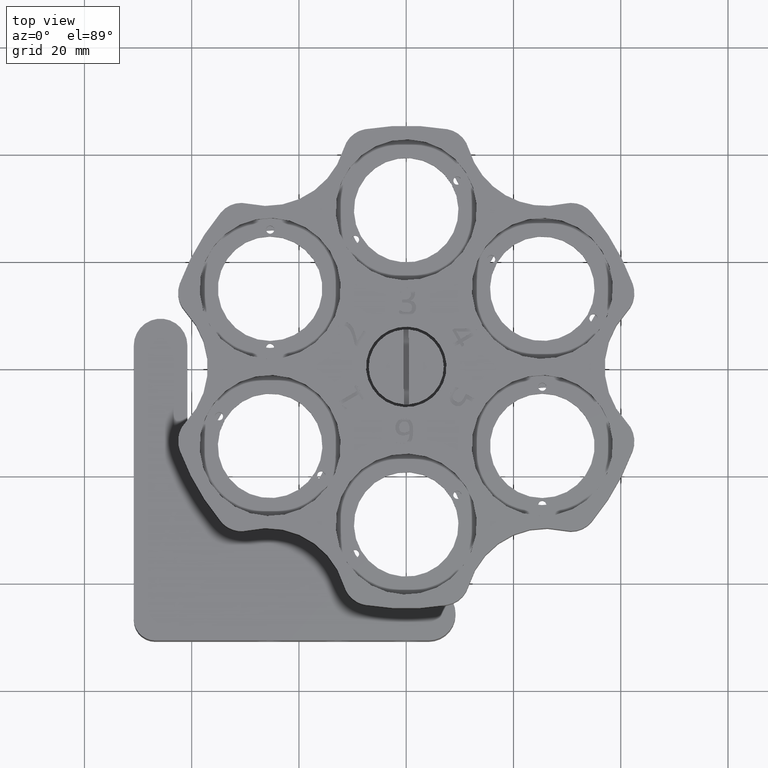
[diagram: clean part render]
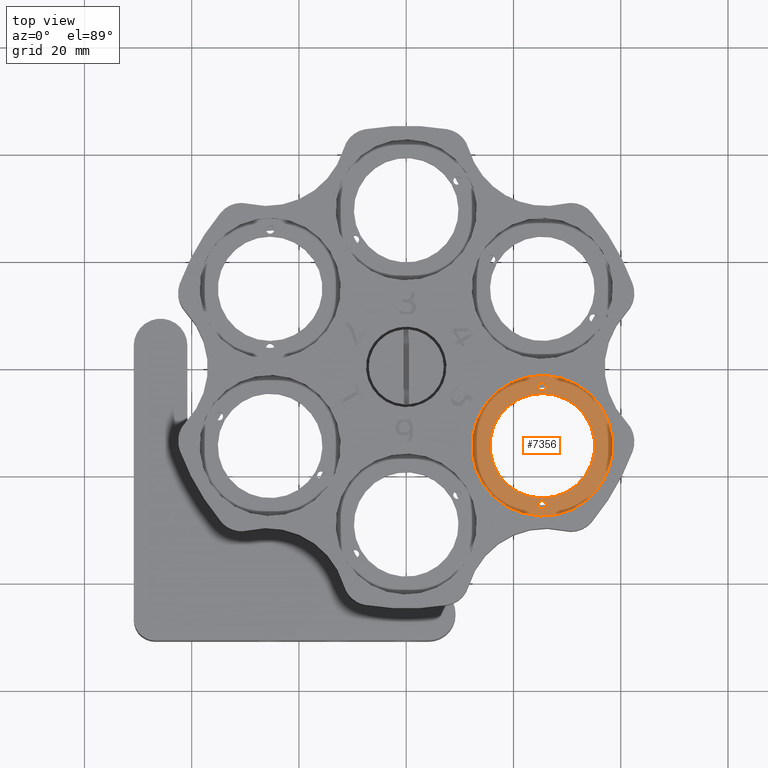
[diagram: same view with one face highlighted and labeled with its STEP entity id]
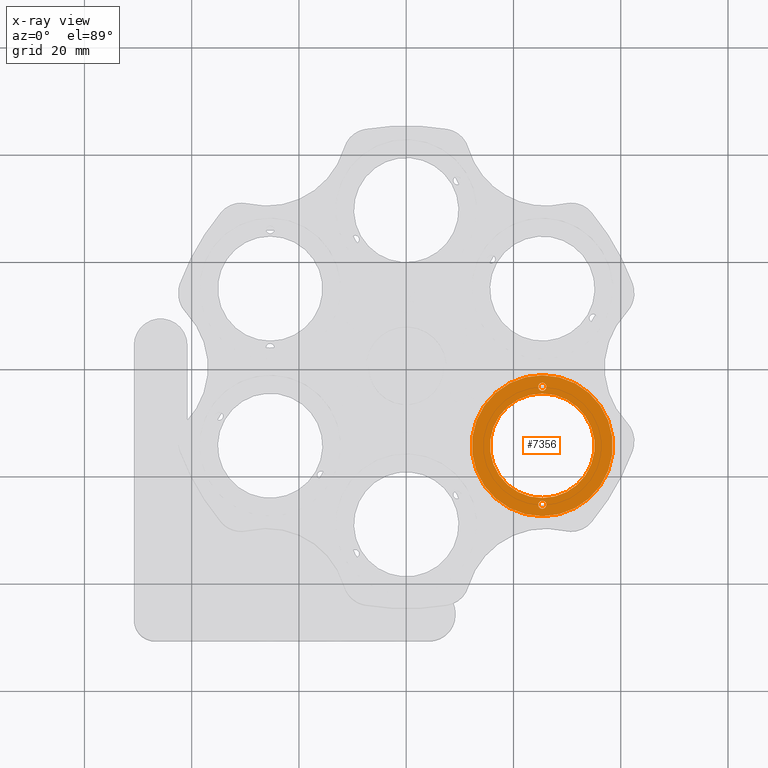
[diagram: x-ray of the same camera — body ghosted, the highlighted face saturated]
A machine part, top view. The second image highlights one B-rep face of the part: STEP entity #7356.
The next image is the same camera in x-ray: the body ghosted, the highlighted face saturated — about 0% of this face is hidden behind the body in this view.
In plain terms, the highlighted planar face has unit normal (0, -0, 1).
Its self-contained STEP definition (entity closure, byte-faithful):
#51 = DIRECTION ( 'NONE',  ( 7.511970391571011800E-032, 3.328006943901143600E-031, 1.000000000000000000 ) ) ;
#84 = EDGE_CURVE ( 'NONE', #3456, #5220, #5062, .T. ) ;
#321 = DIRECTION ( 'NONE',  ( 0.0000000000000000000, 1.000000000000000000, 0.0000000000000000000 ) ) ;
#370 = ORIENTED_EDGE ( 'NONE', *, *, #2114, .F. ) ;
#534 = CARTESIAN_POINT ( 'NONE',  ( 25.37454433088454700, -25.64999999999951200, 8.599999999999980100 ) ) ;
#688 = AXIS2_PLACEMENT_3D ( 'NONE', #7331, #51, #14393 ) ;
#792 = CIRCLE ( 'NONE', #13187, 0.7500000000000075500 ) ;
#910 = AXIS2_PLACEMENT_3D ( 'NONE', #4142, #10038, #11241 ) ;
#1063 = ORIENTED_EDGE ( 'NONE', *, *, #5797, .F. ) ;
#1271 = EDGE_LOOP ( 'NONE', ( #370, #15469 ) ) ;
#1356 = CIRCLE ( 'NONE', #1898, 0.7500000000000075500 ) ;
#1557 = CIRCLE ( 'NONE', #8731, 9.750000000000106600 ) ;
#1581 = DIRECTION ( 'NONE',  ( 7.511970391571011800E-032, 3.328006943901143600E-031, 1.000000000000000000 ) ) ;
#1662 = DIRECTION ( 'NONE',  ( 7.511970391571011800E-032, 3.328006943901143600E-031, 1.000000000000000000 ) ) ;
#1898 = AXIS2_PLACEMENT_3D ( 'NONE', #534, #14976, #11390 ) ;
#2114 = EDGE_CURVE ( 'NONE', #4459, #4393, #3797, .T. ) ;
#2335 = VERTEX_POINT ( 'NONE', #10854 ) ;
#2833 = DIRECTION ( 'NONE',  ( 0.0000000000000000000, -1.000000000000000000, 0.0000000000000000000 ) ) ;
#3006 = ORIENTED_EDGE ( 'NONE', *, *, #8153, .F. ) ;
#3106 = CARTESIAN_POINT ( 'NONE',  ( 25.37454433088443300, -4.399999999999365300, 8.600000000000092000 ) ) ;
#3381 = EDGE_CURVE ( 'NONE', #5220, #3456, #10917, .T. ) ;
#3456 = VERTEX_POINT ( 'NONE', #12927 ) ;
#3744 = VERTEX_POINT ( 'NONE', #3106 ) ;
#3759 = CARTESIAN_POINT ( 'NONE',  ( 25.37454433088454700, -25.64999999999951200, 8.599999999999980100 ) ) ;
#3797 = CIRCLE ( 'NONE', #8802, 9.750000000000106600 ) ;
#3831 = ORIENTED_EDGE ( 'NONE', *, *, #84, .T. ) ;
#4009 = CIRCLE ( 'NONE', #7514, 0.7500000000000084400 ) ;
#4056 = DIRECTION ( 'NONE',  ( 7.511970391571011800E-032, 3.328006943901143600E-031, 1.000000000000000000 ) ) ;
#4102 = CARTESIAN_POINT ( 'NONE',  ( 25.37454433088442200, -14.64999999999936400, 8.600000000000006800 ) ) ;
#4142 = CARTESIAN_POINT ( 'NONE',  ( 25.37454433088442200, -14.64999999999936400, 8.600000000000006800 ) ) ;
#4393 = VERTEX_POINT ( 'NONE', #12182 ) ;
#4459 = VERTEX_POINT ( 'NONE', #13640 ) ;
#4581 = ORIENTED_EDGE ( 'NONE', *, *, #3381, .T. ) ;
#4671 = EDGE_CURVE ( 'NONE', #4393, #4459, #1557, .T. ) ;
#5062 = CIRCLE ( 'NONE', #688, 13.15000000000014100 ) ;
#5220 = VERTEX_POINT ( 'NONE', #11455 ) ;
#5282 = CARTESIAN_POINT ( 'NONE',  ( 25.37454433088442200, -14.64999999999936400, 8.600000000000006800 ) ) ;
#5334 = DIRECTION ( 'NONE',  ( 0.0000000000000000000, -1.000000000000000000, 0.0000000000000000000 ) ) ;
#5359 = CARTESIAN_POINT ( 'NONE',  ( 25.37454433088443300, -3.649999999999356900, 8.600000000000092000 ) ) ;
#5369 = CARTESIAN_POINT ( 'NONE',  ( 25.37454433088442200, -2.899999999999356400, 8.600000000000092000 ) ) ;
#5797 = EDGE_CURVE ( 'NONE', #3744, #8690, #4009, .T. ) ;
#5895 = FACE_BOUND ( 'NONE', #12339, .T. ) ;
#6549 = VERTEX_POINT ( 'NONE', #11919 ) ;
#6582 = DIRECTION ( 'NONE',  ( 7.511970391571011800E-032, -1.257247067695974800E-030, 1.000000000000000000 ) ) ;
#7331 = CARTESIAN_POINT ( 'NONE',  ( 25.37454433088442200, -14.64999999999936400, 8.600000000000006800 ) ) ;
#7356 = ADVANCED_FACE ( 'NONE', ( #8949, #5895, #8380, #14395 ), #10117, .T. ) ;
#7514 = AXIS2_PLACEMENT_3D ( 'NONE', #5359, #1662, #2833 ) ;
#7545 = AXIS2_PLACEMENT_3D ( 'NONE', #7601, #1581, #13647 ) ;
#7601 = CARTESIAN_POINT ( 'NONE',  ( 25.37454433088443300, -3.649999999999356900, 8.600000000000092000 ) ) ;
#8153 = EDGE_CURVE ( 'NONE', #2335, #6549, #792, .T. ) ;
#8192 = EDGE_CURVE ( 'NONE', #6549, #2335, #1356, .T. ) ;
#8248 = EDGE_CURVE ( 'NONE', #8690, #3744, #9664, .T. ) ;
#8260 = EDGE_LOOP ( 'NONE', ( #3831, #4581 ) ) ;
#8380 = FACE_OUTER_BOUND ( 'NONE', #8260, .T. ) ;
#8690 = VERTEX_POINT ( 'NONE', #5369 ) ;
#8731 = AXIS2_PLACEMENT_3D ( 'NONE', #4102, #4056, #11366 ) ;
#8802 = AXIS2_PLACEMENT_3D ( 'NONE', #5282, #13652, #5334 ) ;
#8949 = FACE_BOUND ( 'NONE', #10723, .T. ) ;
#9664 = CIRCLE ( 'NONE', #7545, 0.7500000000000084400 ) ;
#10038 = DIRECTION ( 'NONE',  ( 7.511970391571011800E-032, 3.328006943901143600E-031, 1.000000000000000000 ) ) ;
#10117 = PLANE ( 'NONE',  #13278 ) ;
#10326 = CARTESIAN_POINT ( 'NONE',  ( 25.37454433088442200, -14.64999999999936400, 8.600000000000006800 ) ) ;
#10723 = EDGE_LOOP ( 'NONE', ( #13255, #3006 ) ) ;
#10854 = CARTESIAN_POINT ( 'NONE',  ( 25.37454433088447600, -24.89999999999951200, 8.599999999999980100 ) ) ;
#10917 = CIRCLE ( 'NONE', #910, 13.15000000000014100 ) ;
#11129 = DIRECTION ( 'NONE',  ( 7.511970391571011800E-032, 3.328006943901143600E-031, 1.000000000000000000 ) ) ;
#11241 = DIRECTION ( 'NONE',  ( 0.0000000000000000000, -1.000000000000000000, 0.0000000000000000000 ) ) ;
#11317 = DIRECTION ( 'NONE',  ( 1.402537042669208600E-031, -1.000000000000000000, -1.257247067695974800E-030 ) ) ;
#11366 = DIRECTION ( 'NONE',  ( 0.0000000000000000000, -1.000000000000000000, 0.0000000000000000000 ) ) ;
#11390 = DIRECTION ( 'NONE',  ( 0.0000000000000000000, 1.000000000000000000, 0.0000000000000000000 ) ) ;
#11455 = CARTESIAN_POINT ( 'NONE',  ( 25.37454433088442200, -27.79999999999936800, 8.600000000000006800 ) ) ;
#11919 = CARTESIAN_POINT ( 'NONE',  ( 25.37454433088447600, -26.39999999999951500, 8.599999999999980100 ) ) ;
#12182 = CARTESIAN_POINT ( 'NONE',  ( 25.37454433088442200, -24.39999999999936600, 8.600000000000006800 ) ) ;
#12339 = EDGE_LOOP ( 'NONE', ( #1063, #14277 ) ) ;
#12927 = CARTESIAN_POINT ( 'NONE',  ( 25.37454433088442200, -1.499999999999364700, 8.600000000000006800 ) ) ;
#13187 = AXIS2_PLACEMENT_3D ( 'NONE', #3759, #11129, #321 ) ;
#13255 = ORIENTED_EDGE ( 'NONE', *, *, #8192, .F. ) ;
#13278 = AXIS2_PLACEMENT_3D ( 'NONE', #10326, #6582, #11317 ) ;
#13640 = CARTESIAN_POINT ( 'NONE',  ( 25.37454433088442200, -4.899999999999363500, 8.600000000000006800 ) ) ;
#13647 = DIRECTION ( 'NONE',  ( 0.0000000000000000000, -1.000000000000000000, 0.0000000000000000000 ) ) ;
#13652 = DIRECTION ( 'NONE',  ( 7.511970391571011800E-032, 3.328006943901143600E-031, 1.000000000000000000 ) ) ;
#14277 = ORIENTED_EDGE ( 'NONE', *, *, #8248, .F. ) ;
#14393 = DIRECTION ( 'NONE',  ( 0.0000000000000000000, -1.000000000000000000, 0.0000000000000000000 ) ) ;
#14395 = FACE_BOUND ( 'NONE', #1271, .T. ) ;
#14976 = DIRECTION ( 'NONE',  ( 7.511970391571011800E-032, 3.328006943901143600E-031, 1.000000000000000000 ) ) ;
#15469 = ORIENTED_EDGE ( 'NONE', *, *, #4671, .F. ) ;